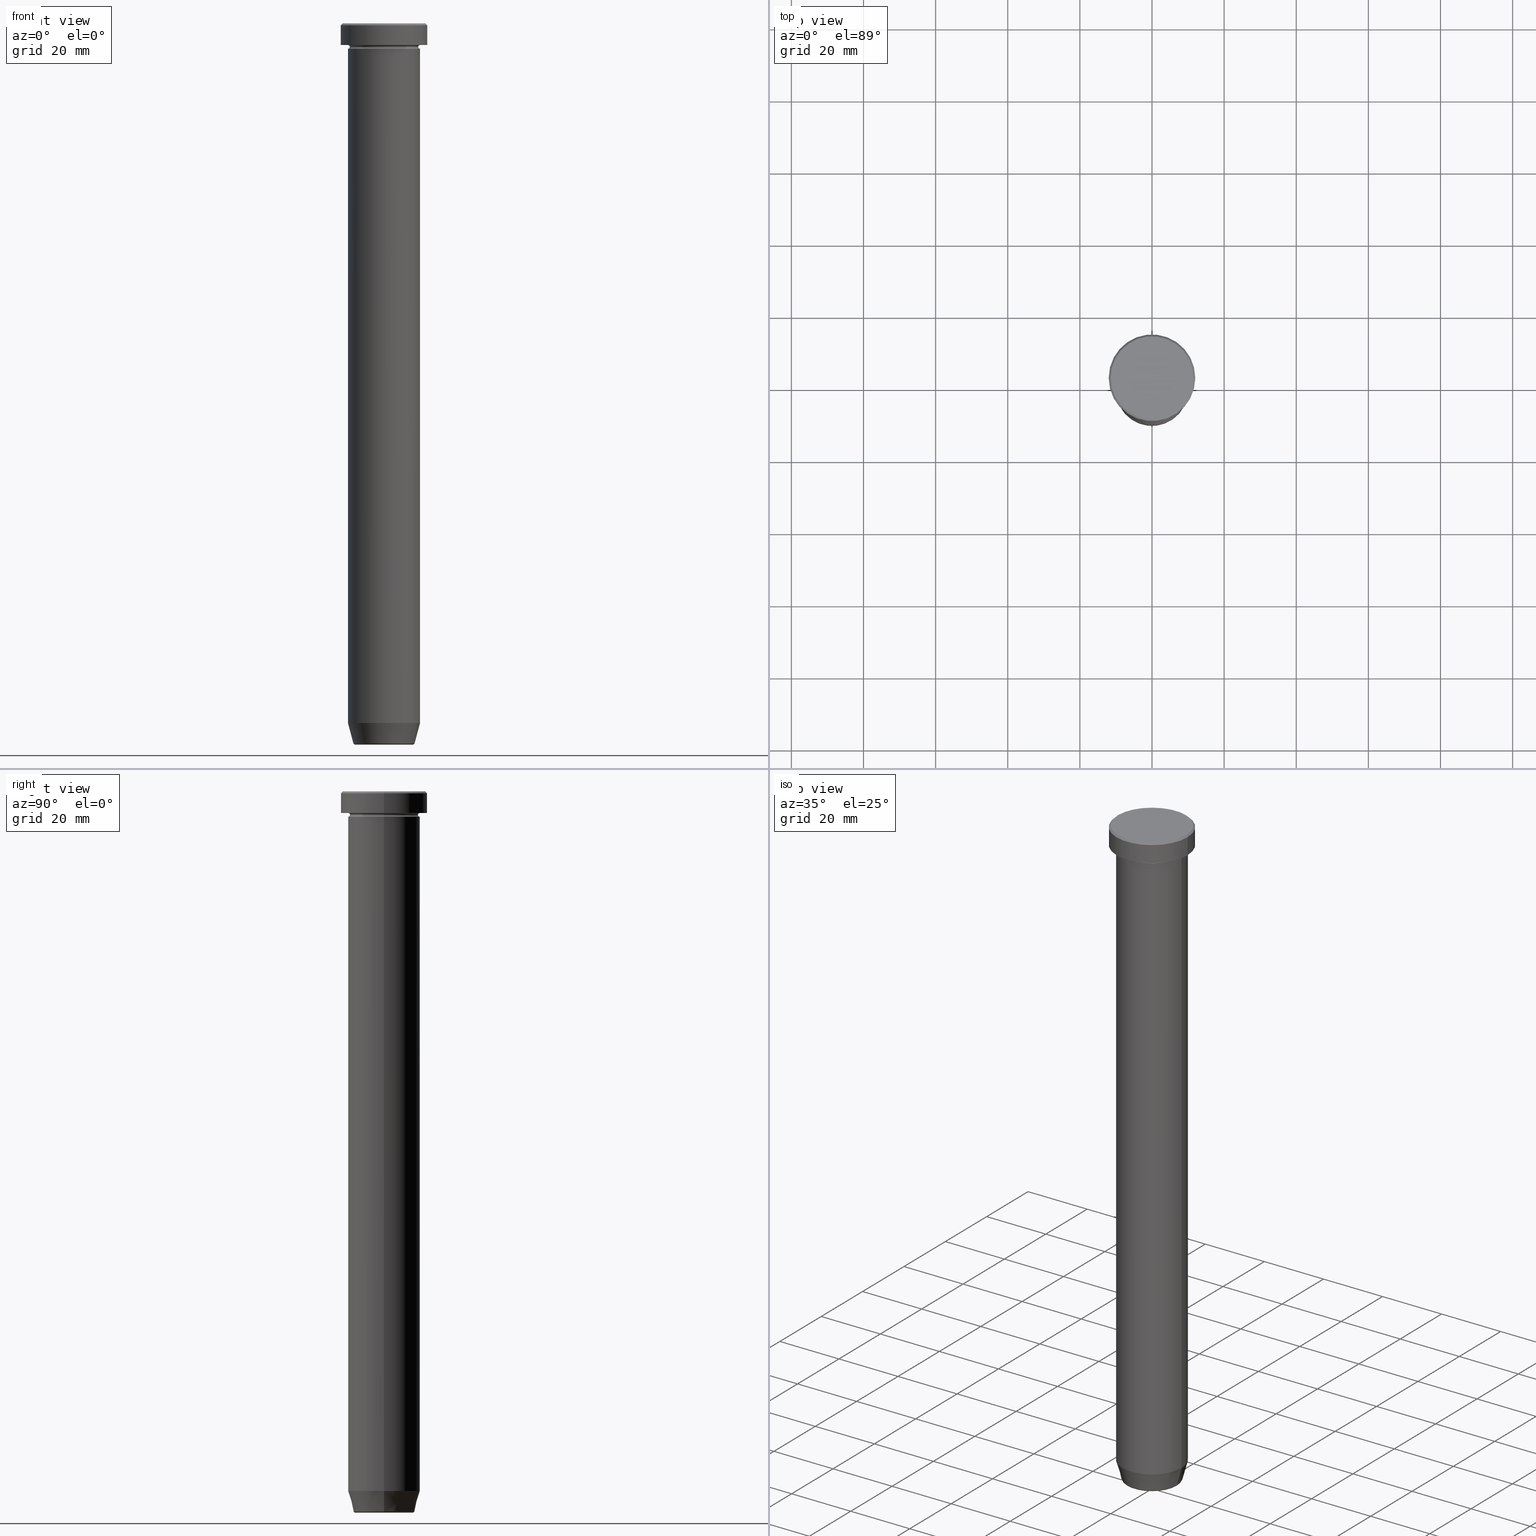
[diagram: canonical four-view strip — front | top / right | iso, engineering-drawing reading convention]
A machine part, canonical four-view strip (front | top / right | iso — engineering-drawing reading convention). The complete STEP part file that produces these views, byte-faithful:
ISO-10303-21;
HEADER;
FILE_DESCRIPTION (( 'STEP AP203' ),
    '1' );
FILE_NAME ('3a6b.STEP',
    '2024-01-02T20:47:16',
    ( '' ),
    ( '' ),
    'SwSTEP 2.0',
    'SolidWorks 2019',
    '' );
FILE_SCHEMA (( 'CONFIG_CONTROL_DESIGN' ));
ENDSEC;

DATA;
#1 = DIRECTION ( 'NONE',  ( 1.224646799147353207E-16, 1.000000000000000000, 0.000000000000000000 ) ) ;
#2 = PRODUCT ( '3a6b', '3a6b', '', ( #17 ) ) ;
#3 = DIRECTION ( 'NONE',  ( 0.000000000000000000, 0.000000000000000000, -1.000000000000000000 ) ) ;
#4 = CIRCLE ( 'NONE', #421, 10.00000000000000000 ) ;
#5 = EDGE_CURVE ( 'NONE', #19, #480, #224, .T. ) ;
#6 = CARTESIAN_POINT ( 'NONE',  ( -10.00000000000000000, 1.224646799147353256E-15, -50.00000000000000000 ) ) ;
#7 = APPROVAL_STATUS ( 'not_yet_approved' ) ;
#8 = CARTESIAN_POINT ( 'NONE',  ( 0.000000000000000000, 0.000000000000000000, -6.499999999999999112 ) ) ;
#9 = CIRCLE ( 'NONE', #316, 12.00000000000000000 ) ;
#10 = CC_DESIGN_APPROVAL ( #465, ( #78 ) ) ;
#11 = ADVANCED_FACE ( 'NONE', ( #113, #105 ), #385, .T. ) ;
#12 = PLANE ( 'NONE',  #547 ) ;
#13 = ADVANCED_FACE ( 'NONE', ( #343 ), #364, .F. ) ;
#14 = DIRECTION ( 'NONE',  ( 0.000000000000000000, 0.000000000000000000, -1.000000000000000000 ) ) ;
#15 = ORIENTED_EDGE ( 'NONE', *, *, #163, .F. ) ;
#16 = LINE ( 'NONE', #194, #376 ) ;
#17 = MECHANICAL_CONTEXT ( 'NONE', #324, 'mechanical' ) ;
#18 = ORIENTED_EDGE ( 'NONE', *, *, #526, .T. ) ;
#19 = VERTEX_POINT ( 'NONE', #157 ) ;
#20 = AXIS2_PLACEMENT_3D ( 'NONE', #328, #444, #498 ) ;
#21 = CC_DESIGN_APPROVAL ( #140, ( #172 ) ) ;
#22 = ORIENTED_EDGE ( 'NONE', *, *, #569, .F. ) ;
#23 = ADVANCED_FACE ( 'NONE', ( #291 ), #490, .T. ) ;
#24 = EDGE_CURVE ( 'NONE', #260, #595, #206, .T. ) ;
#25 = ORIENTED_EDGE ( 'NONE', *, *, #181, .T. ) ;
#26 = DIRECTION ( 'NONE',  ( 1.000000000000000000, 0.000000000000000000, 0.000000000000000000 ) ) ;
#27 = DIRECTION ( 'NONE',  ( 1.000000000000000000, 0.000000000000000000, 0.000000000000000000 ) ) ;
#28 = DIRECTION ( 'NONE',  ( -0.000000000000000000, -0.000000000000000000, 1.000000000000000000 ) ) ;
#29 = ORIENTED_EDGE ( 'NONE', *, *, #526, .F. ) ;
#30 = SHAPE_DEFINITION_REPRESENTATION ( #40, #469 ) ;
#31 = AXIS2_PLACEMENT_3D ( 'NONE', #567, #442, #521 ) ;
#32 = DIRECTION ( 'NONE',  ( 0.000000000000000000, -1.000000000000000000, 0.000000000000000000 ) ) ;
#33 = CC_DESIGN_PERSON_AND_ORGANIZATION_ASSIGNMENT ( #586, #401, ( #172 ) ) ;
#34 = CIRCLE ( 'NONE', #148, 10.00000000000000000 ) ;
#35 = VERTEX_POINT ( 'NONE', #554 ) ;
#36 = DATE_TIME_ROLE ( 'classification_date' ) ;
#37 = DIRECTION ( 'NONE',  ( -0.000000000000000000, -0.000000000000000000, 1.000000000000000000 ) ) ;
#38 = EDGE_LOOP ( 'NONE', ( #120, #257, #170, #346 ) ) ;
#39 = CLOSED_SHELL ( 'NONE', ( #523, #269, #23, #228, #121, #431, #118, #553 ) ) ;
#40 = PRODUCT_DEFINITION_SHAPE ( 'NONE', 'NONE',  #78 ) ;
#41 = CARTESIAN_POINT ( 'NONE',  ( -8.008641351423783306, 9.807756996540268265E-16, -199.5000000000000000 ) ) ;
#42 = CIRCLE ( 'NONE', #565, 11.50000000000000888 ) ;
#43 = AXIS2_PLACEMENT_3D ( 'NONE', #254, #491, #72 ) ;
#44 = EDGE_CURVE ( 'NONE', #220, #582, #259, .T. ) ;
#45 = FACE_OUTER_BOUND ( 'NONE', #496, .T. ) ;
#46 = CARTESIAN_POINT ( 'NONE',  ( -10.00000000000000000, 1.224646799147353256E-15, -6.999999999999999112 ) ) ;
#47 = CARTESIAN_POINT ( 'NONE',  ( 0.000000000000000000, 0.000000000000000000, -50.00000000000000000 ) ) ;
#48 = DIRECTION ( 'NONE',  ( 0.000000000000000000, -0.000000000000000000, 1.000000000000000000 ) ) ;
#49 = AXIS2_PLACEMENT_3D ( 'NONE', #479, #186, #14 ) ;
#50 = CARTESIAN_POINT ( 'NONE',  ( 0.000000000000000000, 0.000000000000000000, -200.0000000000000000 ) ) ;
#51 = CARTESIAN_POINT ( 'NONE',  ( 10.00000000000000000, 1.224646799147353256E-15, -6.500000000000000888 ) ) ;
#52 = CYLINDRICAL_SURFACE ( 'NONE', #410, 12.00000000000000000 ) ;
#53 = FACE_OUTER_BOUND ( 'NONE', #106, .T. ) ;
#54 = DIRECTION ( 'NONE',  ( 1.000000000000000000, 0.000000000000000000, 0.000000000000000000 ) ) ;
#55 = AXIS2_PLACEMENT_3D ( 'NONE', #124, #304, #503 ) ;
#56 = AXIS2_PLACEMENT_3D ( 'NONE', #182, #369, #555 ) ;
#57 = AXIS2_PLACEMENT_3D ( 'NONE', #62, #404, #282 ) ;
#58 = EDGE_LOOP ( 'NONE', ( #487, #381 ) ) ;
#59 = EDGE_CURVE ( 'NONE', #314, #480, #4, .T. ) ;
#60 = DIRECTION ( 'NONE',  ( -0.000000000000000000, -0.000000000000000000, 1.000000000000000000 ) ) ;
#61 = ORIENTED_EDGE ( 'NONE', *, *, #560, .T. ) ;
#62 = CARTESIAN_POINT ( 'NONE',  ( 0.000000000000000000, 0.000000000000000000, -50.00000000000000000 ) ) ;
#63 = ORIENTED_EDGE ( 'NONE', *, *, #445, .T. ) ;
#64 = VERTEX_POINT ( 'NONE', #125 ) ;
#65 = DIRECTION ( 'NONE',  ( -0.000000000000000000, -0.000000000000000000, 1.000000000000000000 ) ) ;
#66 = ORIENTED_EDGE ( 'NONE', *, *, #515, .T. ) ;
#67 = CYLINDRICAL_SURFACE ( 'NONE', #55, 10.00000000000000000 ) ;
#68 = AXIS2_PLACEMENT_3D ( 'NONE', #528, #207, #151 ) ;
#69 = EDGE_LOOP ( 'NONE', ( #430, #455, #198, #399 ) ) ;
#70 = TOROIDAL_SURFACE ( 'NONE', #20, 10.00000000000000000, 0.5000000000000000000 ) ;
#71 = CIRCLE ( 'NONE', #327, 8.491604264568307414 ) ;
#72 = DIRECTION ( 'NONE',  ( 1.000000000000000000, 0.000000000000000000, 0.000000000000000000 ) ) ;
#73 = DIRECTION ( 'NONE',  ( -0.000000000000000000, -0.000000000000000000, 1.000000000000000000 ) ) ;
#74 = EDGE_CURVE ( 'NONE', #82, #402, #158, .T. ) ;
#75 = VERTEX_POINT ( 'NONE', #413 ) ;
#76 = DIRECTION ( 'NONE',  ( -1.000000000000000000, 0.000000000000000000, 0.000000000000000000 ) ) ;
#77 = ORIENTED_EDGE ( 'NONE', *, *, #380, .T. ) ;
#78 = PRODUCT_DEFINITION ( 'NEZN�M�', '', #172, #579 ) ;
#79 = EDGE_LOOP ( 'NONE', ( #164, #122, #458, #308 ) ) ;
#80 = DIRECTION ( 'NONE',  ( -0.000000000000000000, -0.000000000000000000, 1.000000000000000000 ) ) ;
#81 = CALENDAR_DATE ( 2024, 2, 1 ) ;
#82 = VERTEX_POINT ( 'NONE', #318 ) ;
#83 = ORIENTED_EDGE ( 'NONE', *, *, #585, .F. ) ;
#84 = CARTESIAN_POINT ( 'NONE',  ( 10.00000000000000000, 0.000000000000000000, -50.00000000000000000 ) ) ;
#85 = DIRECTION ( 'NONE',  ( -0.000000000000000000, -0.000000000000000000, 1.000000000000000000 ) ) ;
#86 = DIRECTION ( 'NONE',  ( -0.000000000000000000, -0.000000000000000000, 1.000000000000000000 ) ) ;
#87 = DIRECTION ( 'NONE',  ( 0.000000000000000000, 0.000000000000000000, -1.000000000000000000 ) ) ;
#88 =( NAMED_UNIT ( * ) PLANE_ANGLE_UNIT ( ) SI_UNIT ( $, .RADIAN. ) );
#89 = ORIENTED_EDGE ( 'NONE', *, *, #358, .T. ) ;
#90 = CIRCLE ( 'NONE', #116, 12.00000000000000000 ) ;
#91 = DIRECTION ( 'NONE',  ( 1.000000000000000000, 0.000000000000000000, 0.000000000000000000 ) ) ;
#92 = CARTESIAN_POINT ( 'NONE',  ( 0.000000000000000000, 0.000000000000000000, 0.000000000000000000 ) ) ;
#93 = PRODUCT_RELATED_PRODUCT_CATEGORY ( 'detail', '', ( #2 ) ) ;
#94 = DIRECTION ( 'NONE',  ( 1.000000000000000000, 0.000000000000000000, 0.000000000000000000 ) ) ;
#95 = EDGE_CURVE ( 'NONE', #582, #220, #230, .T. ) ;
#96 = CARTESIAN_POINT ( 'NONE',  ( 0.000000000000000000, 0.000000000000000000, -200.0000000000000000 ) ) ;
#97 = DIRECTION ( 'NONE',  ( 1.000000000000000000, 0.000000000000000000, 0.000000000000000000 ) ) ;
#98 = CARTESIAN_POINT ( 'NONE',  ( 0.000000000000000000, 0.000000000000000000, 0.000000000000000000 ) ) ;
#99 = VECTOR ( 'NONE', #470, 1000.000000000000000 ) ;
#100 = AXIS2_PLACEMENT_3D ( 'NONE', #287, #453, #334 ) ;
#101 = AXIS2_PLACEMENT_3D ( 'NONE', #375, #516, #477 ) ;
#102 = LOCAL_TIME ( 21, 47, 16.00000000000000000, #253 ) ;
#103 = VERTEX_POINT ( 'NONE', #225 ) ;
#104 = CARTESIAN_POINT ( 'NONE',  ( -9.999999999999998224, 1.224646799147353059E-15, 0.000000000000000000 ) ) ;
#105 = FACE_OUTER_BOUND ( 'NONE', #599, .T. ) ;
#106 = EDGE_LOOP ( 'NONE', ( #522, #293 ) ) ;
#107 =( LENGTH_UNIT ( ) NAMED_UNIT ( * ) SI_UNIT ( .MILLI., .METRE. ) );
#108 = COORDINATED_UNIVERSAL_TIME_OFFSET ( 1, 0, .AHEAD. ) ;
#109 = ADVANCED_FACE ( 'NONE', ( #415 ), #313, .F. ) ;
#110 = CARTESIAN_POINT ( 'NONE',  ( 0.000000000000000000, 0.000000000000000000, 0.000000000000000000 ) ) ;
#111 = AXIS2_PLACEMENT_3D ( 'NONE', #390, #73, #27 ) ;
#112 = EDGE_LOOP ( 'NONE', ( #66, #446 ) ) ;
#113 = FACE_BOUND ( 'NONE', #391, .T. ) ;
#114 = CIRCLE ( 'NONE', #101, 9.999999999999998224 ) ;
#115 = ORIENTED_EDGE ( 'NONE', *, *, #319, .F. ) ;
#116 = AXIS2_PLACEMENT_3D ( 'NONE', #258, #414, #137 ) ;
#117 = FACE_OUTER_BOUND ( 'NONE', #407, .T. ) ;
#118 = ADVANCED_FACE ( 'NONE', ( #53 ), #403, .F. ) ;
#119 = VERTEX_POINT ( 'NONE', #495 ) ;
#120 = ORIENTED_EDGE ( 'NONE', *, *, #461, .T. ) ;
#121 = ADVANCED_FACE ( 'NONE', ( #244 ), #210, .T. ) ;
#122 = ORIENTED_EDGE ( 'NONE', *, *, #569, .T. ) ;
#123 = DIRECTION ( 'NONE',  ( -1.000000000000000000, 0.000000000000000000, 0.000000000000000000 ) ) ;
#124 = CARTESIAN_POINT ( 'NONE',  ( 0.000000000000000000, 0.000000000000000000, 0.000000000000000000 ) ) ;
#125 = CARTESIAN_POINT ( 'NONE',  ( 12.00000000000000000, 0.000000000000000000, -0.4999999999999987232 ) ) ;
#126 = ORIENTED_EDGE ( 'NONE', *, *, #184, .T. ) ;
#127 = CIRCLE ( 'NONE', #558, 9.999999999999998224 ) ;
#128 = VECTOR ( 'NONE', #584, 1000.000000000000000 ) ;
#129 = CARTESIAN_POINT ( 'NONE',  ( 11.50000000000000888, 1.408343819019457359E-15, 0.000000000000000000 ) ) ;
#130 = EDGE_LOOP ( 'NONE', ( #115, #63, #261, #590 ) ) ;
#131 = ADVANCED_FACE ( 'NONE', ( #591 ), #67, .T. ) ;
#132 = DIRECTION ( 'NONE',  ( -0.000000000000000000, -0.000000000000000000, 1.000000000000000000 ) ) ;
#133 = VERTEX_POINT ( 'NONE', #84 ) ;
#134 = AXIS2_PLACEMENT_3D ( 'NONE', #8, #192, #249 ) ;
#135 = DIRECTION ( 'NONE',  ( -0.000000000000000000, -0.000000000000000000, 1.000000000000000000 ) ) ;
#136 = EDGE_CURVE ( 'NONE', #361, #314, #256, .T. ) ;
#137 = DIRECTION ( 'NONE',  ( 1.000000000000000000, 0.000000000000000000, 0.000000000000000000 ) ) ;
#138 = CIRCLE ( 'NONE', #398, 0.5000000000000004441 ) ;
#139 = APPROVAL_PERSON_ORGANIZATION ( #440, #468, #331 ) ;
#140 = APPROVAL ( #406, 'NEUR�EN�' ) ;
#141 =( NAMED_UNIT ( * ) SI_UNIT ( $, .STERADIAN. ) SOLID_ANGLE_UNIT ( ) );
#142 = CARTESIAN_POINT ( 'NONE',  ( 11.50000000000000888, 1.438959988998140752E-15, 0.000000000000000000 ) ) ;
#143 = PLANE ( 'NONE',  #56 ) ;
#144 = FACE_OUTER_BOUND ( 'NONE', #130, .T. ) ;
#145 = AXIS2_PLACEMENT_3D ( 'NONE', #270, #471, #227 ) ;
#146 = CC_DESIGN_APPROVAL ( #468, ( #280 ) ) ;
#147 = ADVANCED_FACE ( 'NONE', ( #386 ), #443, .T. ) ;
#148 = AXIS2_PLACEMENT_3D ( 'NONE', #320, #132, #97 ) ;
#149 = CARTESIAN_POINT ( 'NONE',  ( 0.000000000000000000, 0.000000000000000000, 0.000000000000000000 ) ) ;
#150 = CARTESIAN_POINT ( 'NONE',  ( 0.000000000000000000, 12.00000000000000000, -6.000000000000000000 ) ) ;
#151 = DIRECTION ( 'NONE',  ( -1.000000000000000000, 0.000000000000000000, -0.000000000000000000 ) ) ;
#152 = VERTEX_POINT ( 'NONE', #222 ) ;
#153 = APPROVAL_DATE_TIME ( #434, #468 ) ;
#154 = EDGE_CURVE ( 'NONE', #152, #314, #424, .T. ) ;
#155 = DIRECTION ( 'NONE',  ( -0.000000000000000000, -0.000000000000000000, 1.000000000000000000 ) ) ;
#156 = MANIFOLD_SOLID_BREP ( 'Zkosen�1', #322 ) ;
#157 = CARTESIAN_POINT ( 'NONE',  ( 9.500000000000000000, 0.000000000000000000, -6.499999999999999112 ) ) ;
#158 = CIRCLE ( 'NONE', #507, 10.00000000000000000 ) ;
#159 = ORIENTED_EDGE ( 'NONE', *, *, #380, .F. ) ;
#160 = CARTESIAN_POINT ( 'NONE',  ( 10.00000000000000000, 0.000000000000000000, -50.00000000000000000 ) ) ;
#161 = AXIS2_PLACEMENT_3D ( 'NONE', #203, #28, #389 ) ;
#162 = EDGE_LOOP ( 'NONE', ( #83, #312 ) ) ;
#163 = EDGE_CURVE ( 'NONE', #237, #64, #508, .T. ) ;
#164 = ORIENTED_EDGE ( 'NONE', *, *, #358, .F. ) ;
#165 = DIRECTION ( 'NONE',  ( -0.000000000000000000, -0.000000000000000000, 1.000000000000000000 ) ) ;
#166 = ORIENTED_EDGE ( 'NONE', *, *, #95, .F. ) ;
#167 = DIRECTION ( 'NONE',  ( -0.000000000000000000, -0.000000000000000000, 1.000000000000000000 ) ) ;
#168 = CARTESIAN_POINT ( 'NONE',  ( 0.000000000000000000, 0.000000000000000000, 0.000000000000000000 ) ) ;
#169 = EDGE_LOOP ( 'NONE', ( #243, #387, #538, #252 ) ) ;
#170 = ORIENTED_EDGE ( 'NONE', *, *, #362, .F. ) ;
#171 = CIRCLE ( 'NONE', #49, 0.5000000000000004441 ) ;
#172 = PRODUCT_DEFINITION_FORMATION_WITH_SPECIFIED_SOURCE ( 'LIBOVOLN�', '', #2, .NOT_KNOWN. ) ;
#173 = DIRECTION ( 'NONE',  ( -1.000000000000000000, 1.224646799147353454E-16, 0.000000000000000000 ) ) ;
#174 = CC_DESIGN_DATE_AND_TIME_ASSIGNMENT ( #242, #36, ( #280 ) ) ;
#175 = ADVANCED_FACE ( 'NONE', ( #311 ), #383, .T. ) ;
#176 = DIRECTION ( 'NONE',  ( -1.000000000000000000, 1.224646799147353454E-16, 0.000000000000000000 ) ) ;
#177 = DIRECTION ( 'NONE',  ( 1.224646799147353207E-16, 1.000000000000000000, 0.000000000000000000 ) ) ;
#178 = CC_DESIGN_PERSON_AND_ORGANIZATION_ASSIGNMENT ( #524, #518, ( #2 ) ) ;
#179 = LINE ( 'NONE', #365, #374 ) ;
#180 = CONICAL_SURFACE ( 'NONE', #279, 8.392304845413260495, 0.2617993877991495744 ) ;
#181 = EDGE_CURVE ( 'NONE', #595, #64, #90, .T. ) ;
#182 = CARTESIAN_POINT ( 'NONE',  ( 0.000000000000000000, 0.000000000000000000, -50.00000000000000000 ) ) ;
#183 = CARTESIAN_POINT ( 'NONE',  ( 10.00000000000000000, 0.000000000000000000, -6.999999999999999112 ) ) ;
#184 = EDGE_CURVE ( 'NONE', #119, #241, #251, .T. ) ;
#185 = AXIS2_PLACEMENT_3D ( 'NONE', #150, #573, #283 ) ;
#186 = DIRECTION ( 'NONE',  ( -0.000000000000000000, -1.000000000000000000, -0.000000000000000000 ) ) ;
#187 = ADVANCED_FACE ( 'NONE', ( #359 ), #307, .F. ) ;
#188 = CIRCLE ( 'NONE', #416, 12.00000000000000000 ) ;
#189 = AXIS2_PLACEMENT_3D ( 'NONE', #199, #155, #541 ) ;
#190 = COORDINATED_UNIVERSAL_TIME_OFFSET ( 1, 0, .AHEAD. ) ;
#191 = DIRECTION ( 'NONE',  ( 1.000000000000000000, 0.000000000000000000, 0.000000000000000000 ) ) ;
#192 = DIRECTION ( 'NONE',  ( -0.000000000000000000, -0.000000000000000000, 1.000000000000000000 ) ) ;
#193 = VERTEX_POINT ( 'NONE', #363 ) ;
#194 = CARTESIAN_POINT ( 'NONE',  ( 10.00000000000000000, 0.000000000000000000, 0.000000000000000000 ) ) ;
#195 = DIRECTION ( 'NONE',  ( -0.000000000000000000, -0.000000000000000000, 1.000000000000000000 ) ) ;
#196 = CIRCLE ( 'NONE', #366, 11.50000000000000888 ) ;
#197 = AXIS2_PLACEMENT_3D ( 'NONE', #149, #427, #191 ) ;
#198 = ORIENTED_EDGE ( 'NONE', *, *, #589, .T. ) ;
#199 = CARTESIAN_POINT ( 'NONE',  ( 0.000000000000000000, 0.000000000000000000, -50.00000000000000000 ) ) ;
#200 = DIRECTION ( 'NONE',  ( 1.000000000000000000, 0.000000000000000000, 0.000000000000000000 ) ) ;
#201 = DIRECTION ( 'NONE',  ( 1.000000000000000000, 0.000000000000000000, 0.000000000000000000 ) ) ;
#202 = EDGE_LOOP ( 'NONE', ( #405, #22, #592, #77 ) ) ;
#203 = CARTESIAN_POINT ( 'NONE',  ( 0.000000000000000000, 0.000000000000000000, -6.999999999999999112 ) ) ;
#204 = EDGE_CURVE ( 'NONE', #103, #64, #235, .T. ) ;
#205 = ORIENTED_EDGE ( 'NONE', *, *, #163, .T. ) ;
#206 = LINE ( 'NONE', #510, #352 ) ;
#207 = DIRECTION ( 'NONE',  ( 0.000000000000000000, 0.000000000000000000, -1.000000000000000000 ) ) ;
#208 = ADVANCED_FACE ( 'NONE', ( #420 ), #233, .T. ) ;
#209 = LINE ( 'NONE', #337, #128 ) ;
#210 = CYLINDRICAL_SURFACE ( 'NONE', #472, 9.999999999999998224 ) ;
#211 = AXIS2_PLACEMENT_3D ( 'NONE', #51, #229, #423 ) ;
#212 = EDGE_LOOP ( 'NONE', ( #298, #529, #587, #289 ) ) ;
#213 = CIRCLE ( 'NONE', #57, 10.00000000000000000 ) ;
#214 = DATE_AND_TIME ( #290, #292 ) ;
#215 = ORIENTED_EDGE ( 'NONE', *, *, #24, .T. ) ;
#216 = PERSON_AND_ORGANIZATION ( #295, #239 ) ;
#217 = EDGE_CURVE ( 'NONE', #152, #241, #171, .T. ) ;
#218 = FACE_OUTER_BOUND ( 'NONE', #535, .T. ) ;
#219 = DIRECTION ( 'NONE',  ( -0.000000000000000000, -0.000000000000000000, 1.000000000000000000 ) ) ;
#220 = VERTEX_POINT ( 'NONE', #520 ) ;
#221 = CARTESIAN_POINT ( 'NONE',  ( 0.000000000000000000, 0.000000000000000000, -6.000000000000000000 ) ) ;
#222 = CARTESIAN_POINT ( 'NONE',  ( -9.500000000000000000, 1.194030629168669469E-15, -6.499999999999999112 ) ) ;
#223 = EDGE_CURVE ( 'NONE', #35, #82, #371, .T. ) ;
#224 = CIRCLE ( 'NONE', #31, 0.5000000000000004441 ) ;
#225 = CARTESIAN_POINT ( 'NONE',  ( 12.00000000000000000, 0.000000000000000000, -5.999999999999999112 ) ) ;
#226 = CONICAL_SURFACE ( 'NONE', #583, 11.50000000000000888, 0.7853981633974412846 ) ;
#227 = DIRECTION ( 'NONE',  ( -1.000000000000000000, 0.000000000000000000, 0.000000000000000000 ) ) ;
#228 = ADVANCED_FACE ( 'NONE', ( #418 ), #143, .F. ) ;
#229 = DIRECTION ( 'NONE',  ( -1.224646799147353207E-16, 1.000000000000000000, 0.000000000000000000 ) ) ;
#230 = CIRCLE ( 'NONE', #576, 8.008641351423783306 ) ;
#231 = DIRECTION ( 'NONE',  ( -0.000000000000000000, -0.000000000000000000, 1.000000000000000000 ) ) ;
#232 = AXIS2_PLACEMENT_3D ( 'NONE', #500, #309, #266 ) ;
#233 = CYLINDRICAL_SURFACE ( 'NONE', #478, 10.00000000000000000 ) ;
#234 = CC_DESIGN_DATE_AND_TIME_ASSIGNMENT ( #214, #494, ( #78 ) ) ;
#235 = LINE ( 'NONE', #277, #489 ) ;
#236 = ORIENTED_EDGE ( 'NONE', *, *, #24, .F. ) ;
#237 = VERTEX_POINT ( 'NONE', #142 ) ;
#238 = AXIS2_PLACEMENT_3D ( 'NONE', #168, #85, #581 ) ;
#239 = ORGANIZATION ( 'NEUR�EN�', 'NEUR�EN�', '' ) ;
#240 = ORIENTED_EDGE ( 'NONE', *, *, #589, .F. ) ;
#241 = VERTEX_POINT ( 'NONE', #323 ) ;
#242 = DATE_AND_TIME ( #285, #102 ) ;
#243 = ORIENTED_EDGE ( 'NONE', *, *, #372, .F. ) ;
#244 = FACE_OUTER_BOUND ( 'NONE', #212, .T. ) ;
#245 = DIRECTION ( 'NONE',  ( -0.000000000000000000, -0.000000000000000000, 1.000000000000000000 ) ) ;
#246 = DIRECTION ( 'NONE',  ( 0.000000000000000000, 0.000000000000000000, -1.000000000000000000 ) ) ;
#247 = DIRECTION ( 'NONE',  ( 0.000000000000000000, 0.000000000000000000, -1.000000000000000000 ) ) ;
#248 = ORIENTED_EDGE ( 'NONE', *, *, #315, .F. ) ;
#249 = DIRECTION ( 'NONE',  ( 1.000000000000000000, 0.000000000000000000, 0.000000000000000000 ) ) ;
#250 = VECTOR ( 'NONE', #195, 1000.000000000000000 ) ;
#251 = CIRCLE ( 'NONE', #425, 10.00000000000000000 ) ;
#252 = ORIENTED_EDGE ( 'NONE', *, *, #5, .F. ) ;
#253 = COORDINATED_UNIVERSAL_TIME_OFFSET ( 1, 0, .AHEAD. ) ;
#254 = CARTESIAN_POINT ( 'NONE',  ( 0.000000000000000000, 0.000000000000000000, -199.5000000000000000 ) ) ;
#255 = CARTESIAN_POINT ( 'NONE',  ( 0.000000000000000000, 0.000000000000000000, -5.999999999999999112 ) ) ;
#256 = LINE ( 'NONE', #457, #250 ) ;
#257 = ORIENTED_EDGE ( 'NONE', *, *, #278, .T. ) ;
#258 = CARTESIAN_POINT ( 'NONE',  ( 0.000000000000000000, 0.000000000000000000, -0.4999999999999987232 ) ) ;
#259 = CIRCLE ( 'NONE', #593, 8.008641351423783306 ) ;
#260 = VERTEX_POINT ( 'NONE', #274 ) ;
#261 = ORIENTED_EDGE ( 'NONE', *, *, #204, .T. ) ;
#262 = AXIS2_PLACEMENT_3D ( 'NONE', #296, #493, #436 ) ;
#263 = CIRCLE ( 'NONE', #189, 10.00000000000000000 ) ;
#264 = FACE_OUTER_BOUND ( 'NONE', #112, .T. ) ;
#265 = DIRECTION ( 'NONE',  ( 0.7071067811865425767, 8.659560562354874926E-17, -0.7071067811865525687 ) ) ;
#266 = DIRECTION ( 'NONE',  ( 1.000000000000000000, 0.000000000000000000, 0.000000000000000000 ) ) ;
#267 = DIRECTION ( 'NONE',  ( -0.7071067811865425767, 0.000000000000000000, -0.7071067811865525687 ) ) ;
#268 = DIRECTION ( 'NONE',  ( 0.000000000000000000, 0.000000000000000000, -1.000000000000000000 ) ) ;
#269 = ADVANCED_FACE ( 'NONE', ( #475 ), #451, .T. ) ;
#270 = CARTESIAN_POINT ( 'NONE',  ( 0.000000000000000000, 0.000000000000000000, -199.6294095225512990 ) ) ;
#271 = CARTESIAN_POINT ( 'NONE',  ( 0.000000000000000000, 0.000000000000000000, -200.0000000000000000 ) ) ;
#272 = AXIS2_PLACEMENT_3D ( 'NONE', #568, #231, #288 ) ;
#273 = LOCAL_TIME ( 21, 47, 16.00000000000000000, #546 ) ;
#274 = CARTESIAN_POINT ( 'NONE',  ( -11.50000000000000888, 0.000000000000000000, 0.000000000000000000 ) ) ;
#275 = CARTESIAN_POINT ( 'NONE',  ( 0.000000000000000000, 0.000000000000000000, 0.000000000000000000 ) ) ;
#276 = EDGE_CURVE ( 'NONE', #35, #75, #127, .T. ) ;
#277 = CARTESIAN_POINT ( 'NONE',  ( 12.00000000000000000, 0.000000000000000000, 0.000000000000000000 ) ) ;
#278 = EDGE_CURVE ( 'NONE', #504, #35, #179, .T. ) ;
#279 = AXIS2_PLACEMENT_3D ( 'NONE', #299, #245, #317 ) ;
#280 = SECURITY_CLASSIFICATION ( '', '', #422 ) ;
#281 = ORIENTED_EDGE ( 'NONE', *, *, #136, .T. ) ;
#282 = DIRECTION ( 'NONE',  ( 1.000000000000000000, 0.000000000000000000, 0.000000000000000000 ) ) ;
#283 = DIRECTION ( 'NONE',  ( -1.000000000000000000, 0.000000000000000000, -0.000000000000000000 ) ) ;
#284 = ORIENTED_EDGE ( 'NONE', *, *, #204, .F. ) ;
#285 = CALENDAR_DATE ( 2024, 2, 1 ) ;
#286 = ORIENTED_EDGE ( 'NONE', *, *, #585, .T. ) ;
#287 = CARTESIAN_POINT ( 'NONE',  ( 0.000000000000000000, 1.836970198721030062E-14, -200.0000000000000000 ) ) ;
#288 = DIRECTION ( 'NONE',  ( 1.000000000000000000, 0.000000000000000000, 0.000000000000000000 ) ) ;
#289 = ORIENTED_EDGE ( 'NONE', *, *, #74, .F. ) ;
#290 = CALENDAR_DATE ( 2024, 2, 1 ) ;
#291 = FACE_OUTER_BOUND ( 'NONE', #335, .T. ) ;
#292 = LOCAL_TIME ( 21, 47, 16.00000000000000000, #297 ) ;
#293 = ORIENTED_EDGE ( 'NONE', *, *, #44, .T. ) ;
#294 = CARTESIAN_POINT ( 'NONE',  ( 0.000000000000000000, 0.000000000000000000, -199.6294095225512990 ) ) ;
#295 = PERSON ( 'NEUR�EN�', 'NEUR�EN�', 'NEUR�EN�', ('NEUR�EN�'), ('NEUR�EN�'), ('NEUR�EN�') ) ;
#296 = CARTESIAN_POINT ( 'NONE',  ( 0.000000000000000000, 0.000000000000000000, -199.5000000000000000 ) ) ;
#297 = COORDINATED_UNIVERSAL_TIME_OFFSET ( 1, 0, .AHEAD. ) ;
#298 = ORIENTED_EDGE ( 'NONE', *, *, #223, .F. ) ;
#299 = CARTESIAN_POINT ( 'NONE',  ( 0.000000000000000000, 0.000000000000000000, -200.0000000000000000 ) ) ;
#300 = ORIENTED_EDGE ( 'NONE', *, *, #445, .F. ) ;
#301 = AXIS2_PLACEMENT_3D ( 'NONE', #339, #448, #580 ) ;
#302 = DIRECTION ( 'NONE',  ( -0.000000000000000000, -0.000000000000000000, 1.000000000000000000 ) ) ;
#303 = PERSON_AND_ORGANIZATION_ROLE ( 'design_supplier' ) ;
#304 = DIRECTION ( 'NONE',  ( -0.000000000000000000, -0.000000000000000000, 1.000000000000000000 ) ) ;
#305 = CYLINDRICAL_SURFACE ( 'NONE', #238, 12.00000000000000000 ) ;
#306 = VECTOR ( 'NONE', #265, 999.9999999999998863 ) ;
#307 = TOROIDAL_SURFACE ( 'NONE', #519, 10.00000000000000000, 0.5000000000000000000 ) ;
#308 = ORIENTED_EDGE ( 'NONE', *, *, #184, .F. ) ;
#309 = DIRECTION ( 'NONE',  ( 0.000000000000000000, 0.000000000000000000, -1.000000000000000000 ) ) ;
#310 = DATE_AND_TIME ( #81, #273 ) ;
#311 = FACE_OUTER_BOUND ( 'NONE', #353, .T. ) ;
#312 = ORIENTED_EDGE ( 'NONE', *, *, #543, .F. ) ;
#313 = TOROIDAL_SURFACE ( 'NONE', #134, 10.00000000000000000, 0.5000000000000000000 ) ;
#314 = VERTEX_POINT ( 'NONE', #46 ) ;
#315 = EDGE_CURVE ( 'NONE', #64, #595, #355, .T. ) ;
#316 = AXIS2_PLACEMENT_3D ( 'NONE', #255, #65, #201 ) ;
#317 = DIRECTION ( 'NONE',  ( 1.000000000000000000, 0.000000000000000000, 0.000000000000000000 ) ) ;
#318 = CARTESIAN_POINT ( 'NONE',  ( -10.00000000000000000, 1.224646799147353256E-15, -50.00000000000000000 ) ) ;
#319 = EDGE_CURVE ( 'NONE', #193, #595, #466, .T. ) ;
#320 = CARTESIAN_POINT ( 'NONE',  ( 0.000000000000000000, 0.000000000000000000, -50.00000000000000000 ) ) ;
#321 = EDGE_CURVE ( 'NONE', #220, #504, #514, .T. ) ;
#322 = CLOSED_SHELL ( 'NONE', ( #513, #377, #109, #208, #392, #147, #338, #505, #11, #131, #187, #13, #175 ) ) ;
#323 = CARTESIAN_POINT ( 'NONE',  ( -10.00000000000000000, 0.000000000000000000, -6.000000000000000000 ) ) ;
#324 = APPLICATION_CONTEXT ( 'configuration controlled 3d designs of mechanical parts and assemblies' ) ;
#325 = DIRECTION ( 'NONE',  ( -0.000000000000000000, -0.000000000000000000, 1.000000000000000000 ) ) ;
#326 = VECTOR ( 'NONE', #86, 1000.000000000000000 ) ;
#327 = AXIS2_PLACEMENT_3D ( 'NONE', #294, #382, #76 ) ;
#328 = CARTESIAN_POINT ( 'NONE',  ( 0.000000000000000000, 0.000000000000000000, -6.500000000000000888 ) ) ;
#329 = EDGE_LOOP ( 'NONE', ( #545, #368, #482, #570 ) ) ;
#330 = CARTESIAN_POINT ( 'NONE',  ( -12.00000000000000000, 1.469576158976823947E-15, -0.4999999999999987232 ) ) ;
#331 = APPROVAL_ROLE ( '' ) ;
#332 = PERSON_AND_ORGANIZATION ( #295, #239 ) ;
#333 = EDGE_LOOP ( 'NONE', ( #540, #205, #499, #236 ) ) ;
#334 = DIRECTION ( 'NONE',  ( 1.000000000000000000, 0.000000000000000000, 0.000000000000000000 ) ) ;
#335 = EDGE_LOOP ( 'NONE', ( #357, #548, #432, #388 ) ) ;
#336 = EDGE_CURVE ( 'NONE', #237, #260, #196, .T. ) ;
#337 = CARTESIAN_POINT ( 'NONE',  ( 8.392304845413260495, 0.000000000000000000, -200.0000000000000000 ) ) ;
#338 = ADVANCED_FACE ( 'NONE', ( #264 ), #12, .T. ) ;
#339 = CARTESIAN_POINT ( 'NONE',  ( 0.000000000000000000, 0.000000000000000000, -6.500000000000000888 ) ) ;
#340 = DIRECTION ( 'NONE',  ( 1.000000000000000000, 0.000000000000000000, 0.000000000000000000 ) ) ;
#341 = ORIENTED_EDGE ( 'NONE', *, *, #412, .F. ) ;
#342 = AXIS2_PLACEMENT_3D ( 'NONE', #92, #87, #506 ) ;
#343 = FACE_OUTER_BOUND ( 'NONE', #79, .T. ) ;
#344 = DIRECTION ( 'NONE',  ( -1.000000000000000000, 0.000000000000000000, 0.000000000000000000 ) ) ;
#345 = CC_DESIGN_PERSON_AND_ORGANIZATION_ASSIGNMENT ( #456, #527, ( #78 ) ) ;
#346 = ORIENTED_EDGE ( 'NONE', *, *, #560, .F. ) ;
#347 = DIRECTION ( 'NONE',  ( 1.000000000000000000, 0.000000000000000000, 0.000000000000000000 ) ) ;
#348 = EDGE_LOOP ( 'NONE', ( #18, #483, #25, #284 ) ) ;
#349 = CARTESIAN_POINT ( 'NONE',  ( 8.008641351423783306, 0.000000000000000000, -200.0000000000000000 ) ) ;
#350 = UNCERTAINTY_MEASURE_WITH_UNIT (LENGTH_MEASURE( 1.000000000000000082E-05 ), #107, 'distance_accuracy_value', 'NONE');
#351 = FACE_OUTER_BOUND ( 'NONE', #348, .T. ) ;
#352 = VECTOR ( 'NONE', #267, 999.9999999999998863 ) ;
#353 = EDGE_LOOP ( 'NONE', ( #15, #563, #215, #248 ) ) ;
#354 = CARTESIAN_POINT ( 'NONE',  ( -10.00000000000000000, 1.224646799147353256E-15, -6.499999999999999112 ) ) ;
#355 = CIRCLE ( 'NONE', #232, 12.00000000000000000 ) ;
#356 = APPLICATION_CONTEXT ( 'configuration controlled 3d designs of mechanical parts and assemblies' ) ;
#357 = ORIENTED_EDGE ( 'NONE', *, *, #362, .T. ) ;
#358 = EDGE_CURVE ( 'NONE', #19, #119, #552, .T. ) ;
#359 = FACE_OUTER_BOUND ( 'NONE', #202, .T. ) ;
#360 = DIRECTION ( 'NONE',  ( 1.000000000000000000, 0.000000000000000000, 0.000000000000000000 ) ) ;
#361 = VERTEX_POINT ( 'NONE', #6 ) ;
#362 = EDGE_CURVE ( 'NONE', #75, #35, #114, .T. ) ;
#363 = CARTESIAN_POINT ( 'NONE',  ( -12.00000000000000000, 1.469576158976823947E-15, -5.999999999999999112 ) ) ;
#364 = TOROIDAL_SURFACE ( 'NONE', #301, 10.00000000000000000, 0.5000000000000000000 ) ;
#365 = CARTESIAN_POINT ( 'NONE',  ( -8.392304845413260495, 1.027760926640417114E-15, -200.0000000000000000 ) ) ;
#366 = AXIS2_PLACEMENT_3D ( 'NONE', #549, #135, #91 ) ;
#367 = APPROVAL_PERSON_ORGANIZATION ( #216, #140, #594 ) ;
#368 = ORIENTED_EDGE ( 'NONE', *, *, #321, .T. ) ;
#369 = DIRECTION ( 'NONE',  ( 0.000000000000000000, 0.000000000000000000, -1.000000000000000000 ) ) ;
#370 = CARTESIAN_POINT ( 'NONE',  ( -8.491604264568307414, 1.132284198685156387E-15, -199.6294095225512990 ) ) ;
#371 = LINE ( 'NONE', #104, #99 ) ;
#372 = EDGE_CURVE ( 'NONE', #152, #19, #502, .T. ) ;
#373 = AXIS2_PLACEMENT_3D ( 'NONE', #574, #37, #344 ) ;
#374 = VECTOR ( 'NONE', #551, 1000.000000000000000 ) ;
#375 = CARTESIAN_POINT ( 'NONE',  ( 0.000000000000000000, 0.000000000000000000, -194.0000000000000000 ) ) ;
#376 = VECTOR ( 'NONE', #564, 1000.000000000000000 ) ;
#377 = ADVANCED_FACE ( 'NONE', ( #45 ), #70, .F. ) ;
#378 = CARTESIAN_POINT ( 'NONE',  ( 0.000000000000000000, 0.000000000000000000, 0.000000000000000000 ) ) ;
#379 = DIRECTION ( 'NONE',  ( 1.000000000000000000, 0.000000000000000000, 0.000000000000000000 ) ) ;
#380 = EDGE_CURVE ( 'NONE', #480, #314, #462, .T. ) ;
#381 = ORIENTED_EDGE ( 'NONE', *, *, #74, .T. ) ;
#382 = DIRECTION ( 'NONE',  ( -0.000000000000000000, -0.000000000000000000, 1.000000000000000000 ) ) ;
#383 = CONICAL_SURFACE ( 'NONE', #342, 11.50000000000000888, 0.7853981633974412846 ) ;
#384 =( GEOMETRIC_REPRESENTATION_CONTEXT ( 3 ) GLOBAL_UNCERTAINTY_ASSIGNED_CONTEXT ( ( #350 ) ) GLOBAL_UNIT_ASSIGNED_CONTEXT ( ( #107, #88, #141 ) ) REPRESENTATION_CONTEXT ( 'NONE', 'WORKASPACE' ) );
#385 = PLANE ( 'NONE',  #185 ) ;
#386 = FACE_OUTER_BOUND ( 'NONE', #162, .T. ) ;
#387 = ORIENTED_EDGE ( 'NONE', *, *, #154, .T. ) ;
#388 = ORIENTED_EDGE ( 'NONE', *, *, #577, .F. ) ;
#389 = DIRECTION ( 'NONE',  ( 1.000000000000000000, 0.000000000000000000, 0.000000000000000000 ) ) ;
#390 = CARTESIAN_POINT ( 'NONE',  ( 0.000000000000000000, 0.000000000000000000, 0.000000000000000000 ) ) ;
#391 = EDGE_LOOP ( 'NONE', ( #575, #126 ) ) ;
#392 = ADVANCED_FACE ( 'NONE', ( #351 ), #305, .T. ) ;
#393 = AXIS2_PLACEMENT_3D ( 'NONE', #354, #177, #173 ) ;
#394 = APPROVAL_DATE_TIME ( #310, #140 ) ;
#395 = CIRCLE ( 'NONE', #373, 10.00000000000000000 ) ;
#396 = ORIENTED_EDGE ( 'NONE', *, *, #321, .F. ) ;
#397 = CARTESIAN_POINT ( 'NONE',  ( 0.000000000000000000, 0.000000000000000000, 0.000000000000000000 ) ) ;
#398 = AXIS2_PLACEMENT_3D ( 'NONE', #571, #32, #246 ) ;
#399 = ORIENTED_EDGE ( 'NONE', *, *, #59, .F. ) ;
#400 = LINE ( 'NONE', #588, #454 ) ;
#401 = PERSON_AND_ORGANIZATION_ROLE ( 'creator' ) ;
#402 = VERTEX_POINT ( 'NONE', #160 ) ;
#403 = PLANE ( 'NONE',  #100 ) ;
#404 = DIRECTION ( 'NONE',  ( -0.000000000000000000, -0.000000000000000000, 1.000000000000000000 ) ) ;
#405 = ORIENTED_EDGE ( 'NONE', *, *, #154, .F. ) ;
#406 = APPROVAL_STATUS ( 'not_yet_approved' ) ;
#407 = EDGE_LOOP ( 'NONE', ( #396, #166, #438, #449 ) ) ;
#408 = DIRECTION ( 'NONE',  ( -0.000000000000000000, -0.000000000000000000, 1.000000000000000000 ) ) ;
#409 = DIRECTION ( 'NONE',  ( -0.000000000000000000, -0.000000000000000000, 1.000000000000000000 ) ) ;
#410 = AXIS2_PLACEMENT_3D ( 'NONE', #378, #60, #379 ) ;
#411 = ORIENTED_EDGE ( 'NONE', *, *, #276, .F. ) ;
#412 = EDGE_CURVE ( 'NONE', #241, #119, #395, .T. ) ;
#413 = CARTESIAN_POINT ( 'NONE',  ( 9.999999999999998224, 0.000000000000000000, -194.0000000000000000 ) ) ;
#414 = DIRECTION ( 'NONE',  ( 0.000000000000000000, 0.000000000000000000, -1.000000000000000000 ) ) ;
#415 = FACE_OUTER_BOUND ( 'NONE', #169, .T. ) ;
#416 = AXIS2_PLACEMENT_3D ( 'NONE', #512, #409, #360 ) ;
#417 = APPROVAL_PERSON_ORGANIZATION ( #332, #465, #437 ) ;
#418 = FACE_OUTER_BOUND ( 'NONE', #58, .T. ) ;
#419 = CARTESIAN_POINT ( 'NONE',  ( 8.491604264568307414, 0.000000000000000000, -199.6294095225512990 ) ) ;
#420 = FACE_OUTER_BOUND ( 'NONE', #433, .T. ) ;
#421 = AXIS2_PLACEMENT_3D ( 'NONE', #539, #219, #544 ) ;
#422 = SECURITY_CLASSIFICATION_LEVEL ( 'unclassified' ) ;
#423 = DIRECTION ( 'NONE',  ( -1.000000000000000000, -1.224646799147353454E-16, 0.000000000000000000 ) ) ;
#424 = CIRCLE ( 'NONE', #393, 0.5000000000000004441 ) ;
#425 = AXIS2_PLACEMENT_3D ( 'NONE', #221, #408, #597 ) ;
#426 = LOCAL_TIME ( 21, 47, 16.00000000000000000, #108 ) ;
#427 = DIRECTION ( 'NONE',  ( 0.000000000000000000, 0.000000000000000000, 1.000000000000000000 ) ) ;
#428 = CC_DESIGN_PERSON_AND_ORGANIZATION_ASSIGNMENT ( #530, #536, ( #280 ) ) ;
#429 = DIRECTION ( 'NONE',  ( 1.000000000000000000, 0.000000000000000000, 0.000000000000000000 ) ) ;
#430 = ORIENTED_EDGE ( 'NONE', *, *, #136, .F. ) ;
#431 = ADVANCED_FACE ( 'NONE', ( #218 ), #180, .T. ) ;
#432 = ORIENTED_EDGE ( 'NONE', *, *, #460, .F. ) ;
#433 = EDGE_LOOP ( 'NONE', ( #286, #281, #159, #240 ) ) ;
#434 = DATE_AND_TIME ( #484, #426 ) ;
#435 = AXIS2_PLACEMENT_3D ( 'NONE', #50, #325, #26 ) ;
#436 = DIRECTION ( 'NONE',  ( 1.000000000000000000, 0.000000000000000000, 0.000000000000000000 ) ) ;
#437 = APPROVAL_ROLE ( '' ) ;
#438 = ORIENTED_EDGE ( 'NONE', *, *, #532, .T. ) ;
#439 = ORIENTED_EDGE ( 'NONE', *, *, #217, .F. ) ;
#440 = PERSON_AND_ORGANIZATION ( #295, #239 ) ;
#441 = APPROVAL_DATE_TIME ( #557, #465 ) ;
#442 = DIRECTION ( 'NONE',  ( 0.000000000000000000, -1.000000000000000000, 0.000000000000000000 ) ) ;
#443 = PLANE ( 'NONE',  #68 ) ;
#444 = DIRECTION ( 'NONE',  ( 0.000000000000000000, 0.000000000000000000, -1.000000000000000000 ) ) ;
#445 = EDGE_CURVE ( 'NONE', #193, #103, #188, .T. ) ;
#446 = ORIENTED_EDGE ( 'NONE', *, *, #336, .T. ) ;
#447 = APPROVAL_STATUS ( 'not_yet_approved' ) ;
#448 = DIRECTION ( 'NONE',  ( 0.000000000000000000, 0.000000000000000000, -1.000000000000000000 ) ) ;
#449 = ORIENTED_EDGE ( 'NONE', *, *, #556, .F. ) ;
#450 = DIRECTION ( 'NONE',  ( 1.000000000000000000, 0.000000000000000000, 0.000000000000000000 ) ) ;
#451 = CONICAL_SURFACE ( 'NONE', #435, 8.392304845413260495, 0.2617993877991495744 ) ;
#452 = ORIENTED_EDGE ( 'NONE', *, *, #278, .F. ) ;
#453 = DIRECTION ( 'NONE',  ( 0.000000000000000000, -0.000000000000000000, 1.000000000000000000 ) ) ;
#454 = VECTOR ( 'NONE', #167, 1000.000000000000000 ) ;
#455 = ORIENTED_EDGE ( 'NONE', *, *, #543, .T. ) ;
#456 = PERSON_AND_ORGANIZATION ( #295, #239 ) ;
#457 = CARTESIAN_POINT ( 'NONE',  ( -10.00000000000000000, 1.224646799147353256E-15, 0.000000000000000000 ) ) ;
#458 = ORIENTED_EDGE ( 'NONE', *, *, #217, .T. ) ;
#459 = CARTESIAN_POINT ( 'NONE',  ( -12.00000000000000000, 1.469576158976823947E-15, 0.000000000000000000 ) ) ;
#460 = EDGE_CURVE ( 'NONE', #402, #82, #34, .T. ) ;
#461 = EDGE_CURVE ( 'NONE', #464, #504, #596, .T. ) ;
#462 = CIRCLE ( 'NONE', #161, 10.00000000000000000 ) ;
#463 = CIRCLE ( 'NONE', #566, 9.500000000000000000 ) ;
#464 = VERTEX_POINT ( 'NONE', #419 ) ;
#465 = APPROVAL ( #7, 'NEUR�EN�' ) ;
#466 = LINE ( 'NONE', #459, #326 ) ;
#467 = DIRECTION ( 'NONE',  ( 1.000000000000000000, 0.000000000000000000, 0.000000000000000000 ) ) ;
#468 = APPROVAL ( #447, 'NEUR�EN�' ) ;
#469 = ADVANCED_BREP_SHAPE_REPRESENTATION ( '3a6b', ( #156, #572, #197 ), #384 ) ;
#470 = DIRECTION ( 'NONE',  ( -0.000000000000000000, -0.000000000000000000, 1.000000000000000000 ) ) ;
#471 = DIRECTION ( 'NONE',  ( -0.000000000000000000, -0.000000000000000000, 1.000000000000000000 ) ) ;
#472 = AXIS2_PLACEMENT_3D ( 'NONE', #397, #165, #340 ) ;
#473 = AXIS2_PLACEMENT_3D ( 'NONE', #41, #1, #176 ) ;
#474 = TOROIDAL_SURFACE ( 'NONE', #43, 8.008641351423783306, 0.5000000000000000000 ) ;
#475 = FACE_OUTER_BOUND ( 'NONE', #38, .T. ) ;
#476 = DIRECTION ( 'NONE',  ( 1.000000000000000000, 0.000000000000000000, 0.000000000000000000 ) ) ;
#477 = DIRECTION ( 'NONE',  ( 1.000000000000000000, 0.000000000000000000, 0.000000000000000000 ) ) ;
#478 = AXIS2_PLACEMENT_3D ( 'NONE', #98, #517, #429 ) ;
#479 = CARTESIAN_POINT ( 'NONE',  ( -10.00000000000000000, 0.000000000000000000, -6.500000000000000888 ) ) ;
#480 = VERTEX_POINT ( 'NONE', #183 ) ;
#481 = APPLICATION_PROTOCOL_DEFINITION ( 'international standard', 'config_control_design', 1994, #324 ) ;
#482 = ORIENTED_EDGE ( 'NONE', *, *, #461, .F. ) ;
#483 = ORIENTED_EDGE ( 'NONE', *, *, #319, .T. ) ;
#484 = CALENDAR_DATE ( 2024, 2, 1 ) ;
#485 = CARTESIAN_POINT ( 'NONE',  ( 0.000000000000000000, 0.000000000000000000, -194.0000000000000000 ) ) ;
#486 = APPLICATION_PROTOCOL_DEFINITION ( 'international standard', 'config_control_design', 1994, #356 ) ;
#487 = ORIENTED_EDGE ( 'NONE', *, *, #460, .T. ) ;
#488 = ORIENTED_EDGE ( 'NONE', *, *, #556, .T. ) ;
#489 = VECTOR ( 'NONE', #561, 1000.000000000000000 ) ;
#490 = CYLINDRICAL_SURFACE ( 'NONE', #111, 9.999999999999998224 ) ;
#491 = DIRECTION ( 'NONE',  ( -0.000000000000000000, -0.000000000000000000, 1.000000000000000000 ) ) ;
#492 = DIRECTION ( 'NONE',  ( -0.000000000000000000, -0.000000000000000000, 1.000000000000000000 ) ) ;
#493 = DIRECTION ( 'NONE',  ( -0.000000000000000000, -0.000000000000000000, 1.000000000000000000 ) ) ;
#494 = DATE_TIME_ROLE ( 'creation_date' ) ;
#495 = CARTESIAN_POINT ( 'NONE',  ( 10.00000000000000000, 1.224646799147353256E-15, -6.000000000000000000 ) ) ;
#496 = EDGE_LOOP ( 'NONE', ( #525, #89, #341, #439 ) ) ;
#497 = CARTESIAN_POINT ( 'NONE',  ( 0.000000000000000000, 0.000000000000000000, -6.499999999999999112 ) ) ;
#498 = DIRECTION ( 'NONE',  ( -1.000000000000000000, 0.000000000000000000, 0.000000000000000000 ) ) ;
#499 = ORIENTED_EDGE ( 'NONE', *, *, #181, .F. ) ;
#500 = CARTESIAN_POINT ( 'NONE',  ( 0.000000000000000000, 0.000000000000000000, -0.4999999999999987232 ) ) ;
#501 = FACE_OUTER_BOUND ( 'NONE', #329, .T. ) ;
#502 = CIRCLE ( 'NONE', #272, 9.500000000000000000 ) ;
#503 = DIRECTION ( 'NONE',  ( 1.000000000000000000, 0.000000000000000000, 0.000000000000000000 ) ) ;
#504 = VERTEX_POINT ( 'NONE', #370 ) ;
#505 = ADVANCED_FACE ( 'NONE', ( #144 ), #52, .T. ) ;
#506 = DIRECTION ( 'NONE',  ( -1.000000000000000000, 0.000000000000000000, 0.000000000000000000 ) ) ;
#507 = AXIS2_PLACEMENT_3D ( 'NONE', #47, #509, #94 ) ;
#508 = LINE ( 'NONE', #129, #306 ) ;
#509 = DIRECTION ( 'NONE',  ( -0.000000000000000000, -0.000000000000000000, 1.000000000000000000 ) ) ;
#510 = CARTESIAN_POINT ( 'NONE',  ( -11.50000000000000888, 0.000000000000000000, 0.000000000000000000 ) ) ;
#511 = DIRECTION ( 'NONE',  ( -0.000000000000000000, -0.000000000000000000, 1.000000000000000000 ) ) ;
#512 = CARTESIAN_POINT ( 'NONE',  ( 0.000000000000000000, 0.000000000000000000, -5.999999999999999112 ) ) ;
#513 = ADVANCED_FACE ( 'NONE', ( #562 ), #226, .T. ) ;
#514 = CIRCLE ( 'NONE', #473, 0.5000000000000004441 ) ;
#515 = EDGE_CURVE ( 'NONE', #260, #237, #42, .T. ) ;
#516 = DIRECTION ( 'NONE',  ( -0.000000000000000000, -0.000000000000000000, 1.000000000000000000 ) ) ;
#517 = DIRECTION ( 'NONE',  ( -0.000000000000000000, -0.000000000000000000, 1.000000000000000000 ) ) ;
#518 = PERSON_AND_ORGANIZATION_ROLE ( 'design_owner' ) ;
#519 = AXIS2_PLACEMENT_3D ( 'NONE', #550, #511, #54 ) ;
#520 = CARTESIAN_POINT ( 'NONE',  ( -8.008641351423783306, 1.010348648938493172E-15, -200.0000000000000000 ) ) ;
#521 = DIRECTION ( 'NONE',  ( 0.000000000000000000, 0.000000000000000000, -1.000000000000000000 ) ) ;
#522 = ORIENTED_EDGE ( 'NONE', *, *, #95, .T. ) ;
#523 = ADVANCED_FACE ( 'NONE', ( #501 ), #531, .T. ) ;
#524 = PERSON_AND_ORGANIZATION ( #295, #239 ) ;
#525 = ORIENTED_EDGE ( 'NONE', *, *, #372, .T. ) ;
#526 = EDGE_CURVE ( 'NONE', #103, #193, #9, .T. ) ;
#527 = PERSON_AND_ORGANIZATION_ROLE ( 'creator' ) ;
#528 = CARTESIAN_POINT ( 'NONE',  ( 0.000000000000000000, 10.00000000000000000, -50.00000000000000000 ) ) ;
#529 = ORIENTED_EDGE ( 'NONE', *, *, #276, .T. ) ;
#530 = PERSON_AND_ORGANIZATION ( #295, #239 ) ;
#531 = TOROIDAL_SURFACE ( 'NONE', #262, 8.008641351423783306, 0.5000000000000000000 ) ;
#532 = EDGE_CURVE ( 'NONE', #582, #464, #138, .T. ) ;
#533 = LOCAL_TIME ( 21, 47, 16.00000000000000000, #190 ) ;
#534 = DIRECTION ( 'NONE',  ( 1.000000000000000000, 0.000000000000000000, 0.000000000000000000 ) ) ;
#535 = EDGE_LOOP ( 'NONE', ( #452, #488, #61, #411 ) ) ;
#536 = PERSON_AND_ORGANIZATION_ROLE ( 'classification_officer' ) ;
#537 = CC_DESIGN_PERSON_AND_ORGANIZATION_ASSIGNMENT ( #542, #303, ( #172 ) ) ;
#538 = ORIENTED_EDGE ( 'NONE', *, *, #59, .T. ) ;
#539 = CARTESIAN_POINT ( 'NONE',  ( 0.000000000000000000, 0.000000000000000000, -6.999999999999999112 ) ) ;
#540 = ORIENTED_EDGE ( 'NONE', *, *, #336, .F. ) ;
#541 = DIRECTION ( 'NONE',  ( 1.000000000000000000, 0.000000000000000000, 0.000000000000000000 ) ) ;
#542 = PERSON_AND_ORGANIZATION ( #295, #239 ) ;
#543 = EDGE_CURVE ( 'NONE', #361, #133, #263, .T. ) ;
#544 = DIRECTION ( 'NONE',  ( 1.000000000000000000, 0.000000000000000000, 0.000000000000000000 ) ) ;
#545 = ORIENTED_EDGE ( 'NONE', *, *, #44, .F. ) ;
#546 = COORDINATED_UNIVERSAL_TIME_OFFSET ( 1, 0, .AHEAD. ) ;
#547 = AXIS2_PLACEMENT_3D ( 'NONE', #275, #48, #476 ) ;
#548 = ORIENTED_EDGE ( 'NONE', *, *, #223, .T. ) ;
#549 = CARTESIAN_POINT ( 'NONE',  ( 0.000000000000000000, 0.000000000000000000, 0.000000000000000000 ) ) ;
#550 = CARTESIAN_POINT ( 'NONE',  ( 0.000000000000000000, 0.000000000000000000, -6.499999999999999112 ) ) ;
#551 = DIRECTION ( 'NONE',  ( -0.2588190451025209060, 3.169619151431766790E-17, 0.9659258262890682012 ) ) ;
#552 = CIRCLE ( 'NONE', #211, 0.5000000000000004441 ) ;
#553 = ADVANCED_FACE ( 'NONE', ( #117 ), #474, .T. ) ;
#554 = CARTESIAN_POINT ( 'NONE',  ( -9.999999999999998224, 1.224646799147353059E-15, -194.0000000000000000 ) ) ;
#555 = DIRECTION ( 'NONE',  ( -1.000000000000000000, 0.000000000000000000, -0.000000000000000000 ) ) ;
#556 = EDGE_CURVE ( 'NONE', #504, #464, #71, .T. ) ;
#557 = DATE_AND_TIME ( #559, #533 ) ;
#558 = AXIS2_PLACEMENT_3D ( 'NONE', #485, #492, #200 ) ;
#559 = CALENDAR_DATE ( 2024, 2, 1 ) ;
#560 = EDGE_CURVE ( 'NONE', #464, #75, #209, .T. ) ;
#561 = DIRECTION ( 'NONE',  ( -0.000000000000000000, -0.000000000000000000, 1.000000000000000000 ) ) ;
#562 = FACE_OUTER_BOUND ( 'NONE', #333, .T. ) ;
#563 = ORIENTED_EDGE ( 'NONE', *, *, #515, .F. ) ;
#564 = DIRECTION ( 'NONE',  ( -0.000000000000000000, -0.000000000000000000, 1.000000000000000000 ) ) ;
#565 = AXIS2_PLACEMENT_3D ( 'NONE', #110, #302, #534 ) ;
#566 = AXIS2_PLACEMENT_3D ( 'NONE', #497, #80, #450 ) ;
#567 = CARTESIAN_POINT ( 'NONE',  ( 10.00000000000000000, 0.000000000000000000, -6.499999999999999112 ) ) ;
#568 = CARTESIAN_POINT ( 'NONE',  ( 0.000000000000000000, 0.000000000000000000, -6.499999999999999112 ) ) ;
#569 = EDGE_CURVE ( 'NONE', #19, #152, #463, .T. ) ;
#570 = ORIENTED_EDGE ( 'NONE', *, *, #532, .F. ) ;
#571 = CARTESIAN_POINT ( 'NONE',  ( 8.008641351423783306, 0.000000000000000000, -199.5000000000000000 ) ) ;
#572 = MANIFOLD_SOLID_BREP ( 'Zaoblit4', #39 ) ;
#573 = DIRECTION ( 'NONE',  ( 0.000000000000000000, 0.000000000000000000, -1.000000000000000000 ) ) ;
#574 = CARTESIAN_POINT ( 'NONE',  ( 0.000000000000000000, 0.000000000000000000, -6.000000000000000000 ) ) ;
#575 = ORIENTED_EDGE ( 'NONE', *, *, #412, .T. ) ;
#576 = AXIS2_PLACEMENT_3D ( 'NONE', #96, #268, #467 ) ;
#577 = EDGE_CURVE ( 'NONE', #75, #402, #400, .T. ) ;
#578 = CARTESIAN_POINT ( 'NONE',  ( 0.000000000000000000, 0.000000000000000000, 0.000000000000000000 ) ) ;
#579 = DESIGN_CONTEXT ( 'detailed design', #356, 'design' ) ;
#580 = DIRECTION ( 'NONE',  ( -1.000000000000000000, 0.000000000000000000, 0.000000000000000000 ) ) ;
#581 = DIRECTION ( 'NONE',  ( 1.000000000000000000, 0.000000000000000000, 0.000000000000000000 ) ) ;
#582 = VERTEX_POINT ( 'NONE', #349 ) ;
#583 = AXIS2_PLACEMENT_3D ( 'NONE', #578, #247, #123 ) ;
#584 = DIRECTION ( 'NONE',  ( 0.2588190451025209060, 0.000000000000000000, 0.9659258262890682012 ) ) ;
#585 = EDGE_CURVE ( 'NONE', #133, #361, #213, .T. ) ;
#586 = PERSON_AND_ORGANIZATION ( #295, #239 ) ;
#587 = ORIENTED_EDGE ( 'NONE', *, *, #577, .T. ) ;
#588 = CARTESIAN_POINT ( 'NONE',  ( 9.999999999999998224, 0.000000000000000000, 0.000000000000000000 ) ) ;
#589 = EDGE_CURVE ( 'NONE', #133, #480, #16, .T. ) ;
#590 = ORIENTED_EDGE ( 'NONE', *, *, #315, .T. ) ;
#591 = FACE_OUTER_BOUND ( 'NONE', #69, .T. ) ;
#592 = ORIENTED_EDGE ( 'NONE', *, *, #5, .T. ) ;
#593 = AXIS2_PLACEMENT_3D ( 'NONE', #271, #3, #347 ) ;
#594 = APPROVAL_ROLE ( '' ) ;
#595 = VERTEX_POINT ( 'NONE', #330 ) ;
#596 = CIRCLE ( 'NONE', #145, 8.491604264568307414 ) ;
#597 = DIRECTION ( 'NONE',  ( -1.000000000000000000, 0.000000000000000000, 0.000000000000000000 ) ) ;
#598 = CC_DESIGN_SECURITY_CLASSIFICATION ( #280, ( #172 ) ) ;
#599 = EDGE_LOOP ( 'NONE', ( #29, #300 ) ) ;
ENDSEC;
END-ISO-10303-21;
